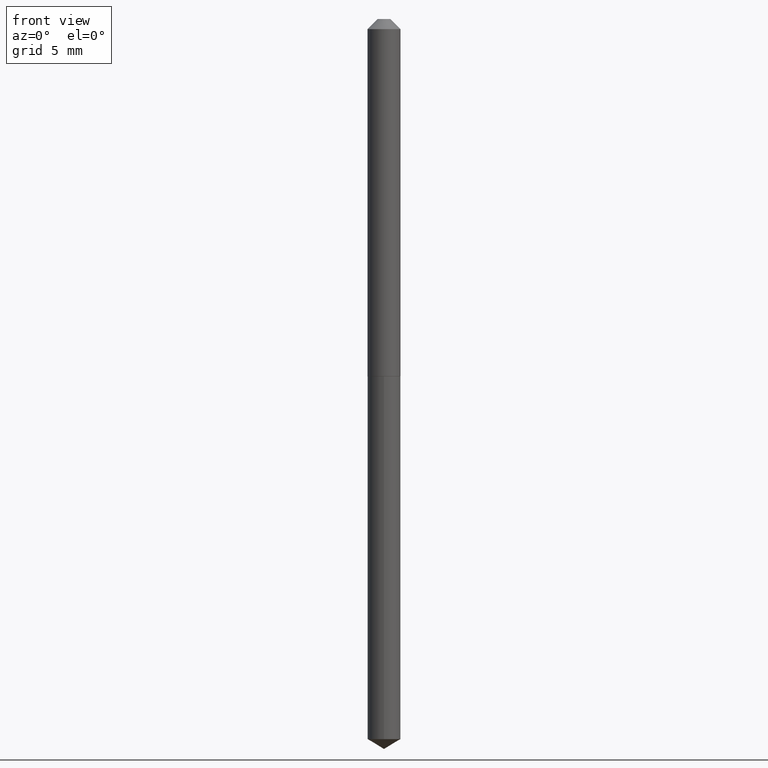
[diagram: clean part render]
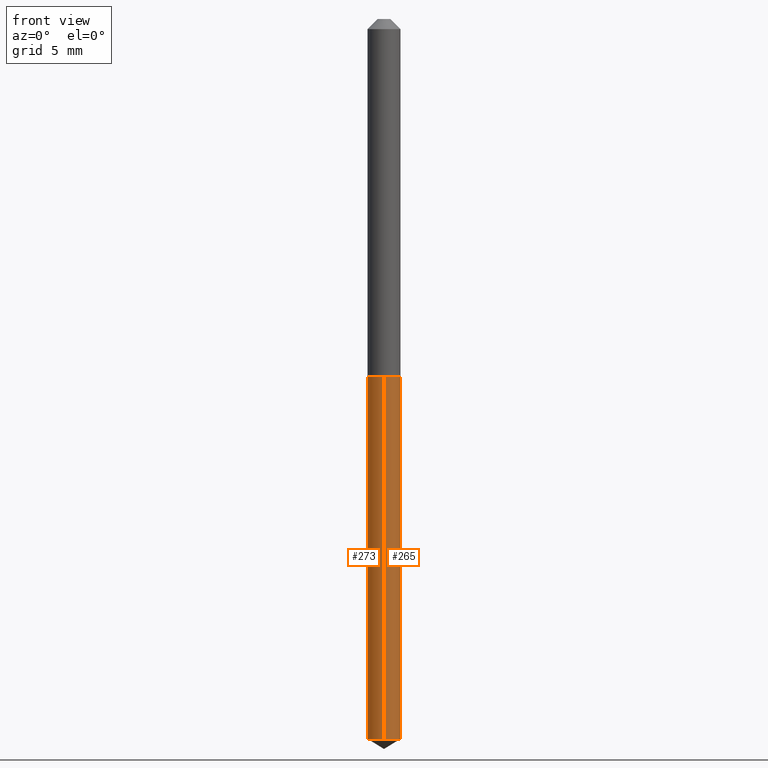
[diagram: same view with one multi-face feature highlighted, each face labeled with its STEP entity id]
A machine part, front view. The highlighted faces form ONE feature: a constant-radius fillet chain: 2 tangent blend faces with common blend radius 1.2891 mm. The faces share edges in the B-rep.
Their STEP definitions:
[1] entity #265 (Cylinder):
#15 = VECTOR ( 'NONE', #379, 39.37007874015748143 ) ;
#22 = ORIENTED_EDGE ( 'NONE', *, *, #42, .F. ) ;
#23 = CIRCLE ( 'NONE', #246, 0.05075000000000000344 ) ;
#24 = VECTOR ( 'NONE', #256, 39.37007874015748143 ) ;
#34 = CARTESIAN_POINT ( 'NONE',  ( 3.606004383983051030E-16, 0.05074999999999225270, -2.219506323584351737 ) ) ;
#35 = DIRECTION ( 'NONE',  ( -2.445476082494629808E-29, 3.491470918753809356E-15, 1.000000000000000000 ) ) ;
#40 = CARTESIAN_POINT ( 'NONE',  ( 5.427741614416211209E-29, -7.749353260513347876E-15, -2.219506323584351293 ) ) ;
#42 = EDGE_CURVE ( 'NONE', #130, #48, #23, .T. ) ;
#43 = DIRECTION ( 'NONE',  ( -2.445476082494629808E-29, 3.491470918753809356E-15, 1.000000000000000000 ) ) ;
#46 = AXIS2_PLACEMENT_3D ( 'NONE', #159, #35, #163 ) ;
#48 = VERTEX_POINT ( 'NONE', #289 ) ;
#74 = EDGE_CURVE ( 'NONE', #257, #48, #174, .T. ) ;
#78 = CIRCLE ( 'NONE', #153, 0.05075000000000000344 ) ;
#82 = DIRECTION ( 'NONE',  ( -2.445476082494629808E-29, 3.491470918753809356E-15, 1.000000000000000000 ) ) ;
#98 = FACE_OUTER_BOUND ( 'NONE', #285, .T. ) ;
#103 = ORIENTED_EDGE ( 'NONE', *, *, #312, .T. ) ;
#113 = CARTESIAN_POINT ( 'NONE',  ( 2.693683890012927652E-29, -3.845866694735724612E-15, -1.101499999999999924 ) ) ;
#126 = CARTESIAN_POINT ( 'NONE',  ( -3.543853558925511236E-16, -0.05075000000000384759, -1.101499999999999924 ) ) ;
#130 = VERTEX_POINT ( 'NONE', #126 ) ;
#153 = AXIS2_PLACEMENT_3D ( 'NONE', #40, #43, #306 ) ;
#159 = CARTESIAN_POINT ( 'NONE',  ( 2.693683890012927652E-29, -3.845866694735724612E-15, -1.101499999999999924 ) ) ;
#163 = DIRECTION ( 'NONE',  ( -6.982962677686266711E-15, -1.000000000000000000, 2.691475855826860001E-15 ) ) ;
#171 = DIRECTION ( 'NONE',  ( -6.982962677686266711E-15, -1.000000000000000000, 2.691475855826860001E-15 ) ) ;
#174 = LINE ( 'NONE', #263, #15 ) ;
#187 = ORIENTED_EDGE ( 'NONE', *, *, #74, .T. ) ;
#190 = CARTESIAN_POINT ( 'NONE',  ( -3.543853558925237600E-16, -0.05075000000000774725, -2.219506323584350849 ) ) ;
#218 = CYLINDRICAL_SURFACE ( 'NONE', #46, 0.05075000000000000344 ) ;
#246 = AXIS2_PLACEMENT_3D ( 'NONE', #113, #82, #171 ) ;
#256 = DIRECTION ( 'NONE',  ( -2.445476082494629808E-29, 3.491470918753808961E-15, 1.000000000000000000 ) ) ;
#257 = VERTEX_POINT ( 'NONE', #34 ) ;
#263 = CARTESIAN_POINT ( 'NONE',  ( 3.606004383982777887E-16, 0.05074999999999616623, -1.101500000000000146 ) ) ;
#265 = ADVANCED_FACE ( 'NONE', ( #98 ), #218, .T. ) ;
#283 = CARTESIAN_POINT ( 'NONE',  ( -3.543853558925511236E-16, -0.05075000000000384759, -1.101499999999999924 ) ) ;
#285 = EDGE_LOOP ( 'NONE', ( #103, #187, #22, #371 ) ) ;
#289 = CARTESIAN_POINT ( 'NONE',  ( 3.606004383983053002E-16, 0.05074999999999615929, -1.101500000000000146 ) ) ;
#306 = DIRECTION ( 'NONE',  ( -6.982962677686266711E-15, -1.000000000000000000, 5.382951711653720002E-15 ) ) ;
#308 = VERTEX_POINT ( 'NONE', #190 ) ;
#312 = EDGE_CURVE ( 'NONE', #308, #257, #78, .T. ) ;
#337 = EDGE_CURVE ( 'NONE', #308, #130, #339, .T. ) ;
#339 = LINE ( 'NONE', #283, #24 ) ;
#371 = ORIENTED_EDGE ( 'NONE', *, *, #337, .F. ) ;
#379 = DIRECTION ( 'NONE',  ( -2.445476082494629808E-29, 3.491470918753808961E-15, 1.000000000000000000 ) ) ;
[2] entity #273 (Cylinder):
#4 = CYLINDRICAL_SURFACE ( 'NONE', #268, 0.05075000000000000344 ) ;
#14 = EDGE_LOOP ( 'NONE', ( #73, #366, #287, #353 ) ) ;
#15 = VECTOR ( 'NONE', #379, 39.37007874015748143 ) ;
#24 = VECTOR ( 'NONE', #256, 39.37007874015748143 ) ;
#34 = CARTESIAN_POINT ( 'NONE',  ( 3.606004383983051030E-16, 0.05074999999999225270, -2.219506323584351737 ) ) ;
#48 = VERTEX_POINT ( 'NONE', #289 ) ;
#66 = DIRECTION ( 'NONE',  ( -2.445476082494629808E-29, 3.491470918753809356E-15, 1.000000000000000000 ) ) ;
#73 = ORIENTED_EDGE ( 'NONE', *, *, #74, .F. ) ;
#74 = EDGE_CURVE ( 'NONE', #257, #48, #174, .T. ) ;
#75 = DIRECTION ( 'NONE',  ( -6.982962677686266711E-15, -1.000000000000000000, 2.691475855826860001E-15 ) ) ;
#107 = DIRECTION ( 'NONE',  ( -6.982962677686266711E-15, -1.000000000000000000, 5.382951711653720002E-15 ) ) ;
#125 = CIRCLE ( 'NONE', #160, 0.05075000000000000344 ) ;
#126 = CARTESIAN_POINT ( 'NONE',  ( -3.543853558925511236E-16, -0.05075000000000384759, -1.101499999999999924 ) ) ;
#130 = VERTEX_POINT ( 'NONE', #126 ) ;
#160 = AXIS2_PLACEMENT_3D ( 'NONE', #330, #66, #326 ) ;
#174 = LINE ( 'NONE', #263, #15 ) ;
#189 = AXIS2_PLACEMENT_3D ( 'NONE', #304, #340, #107 ) ;
#190 = CARTESIAN_POINT ( 'NONE',  ( -3.543853558925237600E-16, -0.05075000000000774725, -2.219506323584350849 ) ) ;
#221 = DIRECTION ( 'NONE',  ( -2.445476082494629808E-29, 3.491470918753809356E-15, 1.000000000000000000 ) ) ;
#243 = EDGE_CURVE ( 'NONE', #48, #130, #125, .T. ) ;
#247 = CIRCLE ( 'NONE', #189, 0.05075000000000000344 ) ;
#250 = CARTESIAN_POINT ( 'NONE',  ( 2.693683890012927652E-29, -3.845866694735724612E-15, -1.101499999999999924 ) ) ;
#256 = DIRECTION ( 'NONE',  ( -2.445476082494629808E-29, 3.491470918753808961E-15, 1.000000000000000000 ) ) ;
#257 = VERTEX_POINT ( 'NONE', #34 ) ;
#263 = CARTESIAN_POINT ( 'NONE',  ( 3.606004383982777887E-16, 0.05074999999999616623, -1.101500000000000146 ) ) ;
#268 = AXIS2_PLACEMENT_3D ( 'NONE', #250, #221, #75 ) ;
#273 = ADVANCED_FACE ( 'NONE', ( #332 ), #4, .T. ) ;
#283 = CARTESIAN_POINT ( 'NONE',  ( -3.543853558925511236E-16, -0.05075000000000384759, -1.101499999999999924 ) ) ;
#287 = ORIENTED_EDGE ( 'NONE', *, *, #337, .T. ) ;
#289 = CARTESIAN_POINT ( 'NONE',  ( 3.606004383983053002E-16, 0.05074999999999615929, -1.101500000000000146 ) ) ;
#304 = CARTESIAN_POINT ( 'NONE',  ( 5.427741614416211209E-29, -7.749353260513347876E-15, -2.219506323584351293 ) ) ;
#308 = VERTEX_POINT ( 'NONE', #190 ) ;
#326 = DIRECTION ( 'NONE',  ( -6.982962677686266711E-15, -1.000000000000000000, 2.691475855826860001E-15 ) ) ;
#330 = CARTESIAN_POINT ( 'NONE',  ( 2.693683890012927652E-29, -3.845866694735724612E-15, -1.101499999999999924 ) ) ;
#332 = FACE_OUTER_BOUND ( 'NONE', #14, .T. ) ;
#337 = EDGE_CURVE ( 'NONE', #308, #130, #339, .T. ) ;
#339 = LINE ( 'NONE', #283, #24 ) ;
#340 = DIRECTION ( 'NONE',  ( -2.445476082494629808E-29, 3.491470918753809356E-15, 1.000000000000000000 ) ) ;
#353 = ORIENTED_EDGE ( 'NONE', *, *, #243, .F. ) ;
#366 = ORIENTED_EDGE ( 'NONE', *, *, #378, .T. ) ;
#378 = EDGE_CURVE ( 'NONE', #257, #308, #247, .T. ) ;
#379 = DIRECTION ( 'NONE',  ( -2.445476082494629808E-29, 3.491470918753808961E-15, 1.000000000000000000 ) ) ;